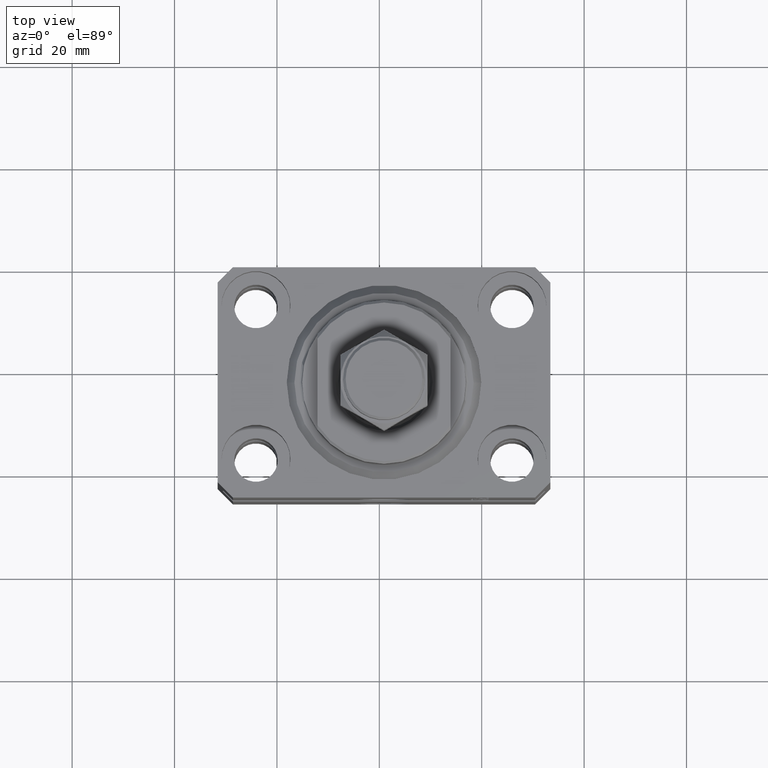
[diagram: clean part render]
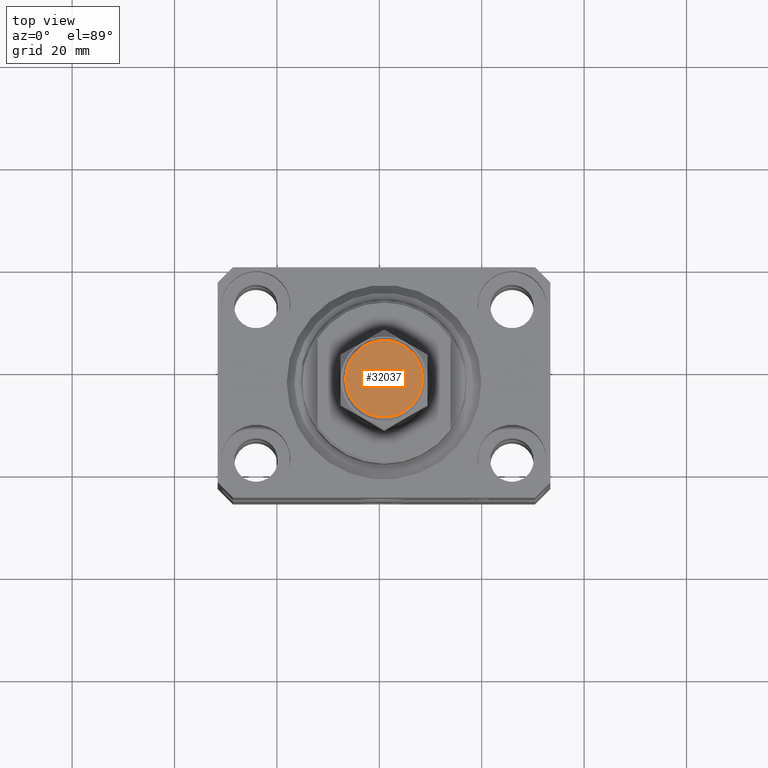
[diagram: same view with one face highlighted and labeled with its STEP entity id]
A machine part, top view. The second image highlights one B-rep face of the part: STEP entity #32037.
In plain terms, the highlighted planar face has unit normal (0, 0, 1).
Its self-contained STEP definition (entity closure, byte-faithful):
#325 = CARTESIAN_POINT ( 'NONE',  ( 0.000000000000000000, 0.000000000000000000, 28.00000000000000000 ) ) ;
#2161 = EDGE_CURVE ( 'NONE', #20769, #38728, #12132, .T. ) ;
#3106 = DIRECTION ( 'NONE',  ( 0.000000000000000000, 0.000000000000000000, 1.000000000000000000 ) ) ;
#5417 = ORIENTED_EDGE ( 'NONE', *, *, #31019, .T. ) ;
#6527 = AXIS2_PLACEMENT_3D ( 'NONE', #13938, #6704, #28371 ) ;
#6704 = DIRECTION ( 'NONE',  ( 0.000000000000000000, 0.000000000000000000, 1.000000000000000000 ) ) ;
#6933 = FACE_OUTER_BOUND ( 'NONE', #42338, .T. ) ;
#11048 = DIRECTION ( 'NONE',  ( 1.000000000000000000, 0.000000000000000000, 0.000000000000000000 ) ) ;
#11522 = DIRECTION ( 'NONE',  ( 1.000000000000000000, 0.000000000000000000, 0.000000000000000000 ) ) ;
#12132 = CIRCLE ( 'NONE', #38141, 7.500000000000000000 ) ;
#13938 = CARTESIAN_POINT ( 'NONE',  ( 0.000000000000000000, 0.000000000000000000, 28.00000000000000000 ) ) ;
#15035 = DIRECTION ( 'NONE',  ( 0.000000000000000000, 0.000000000000000000, 1.000000000000000000 ) ) ;
#19124 = CARTESIAN_POINT ( 'NONE',  ( -7.500000000000000000, 0.000000000000000000, 28.00000000000000000 ) ) ;
#20638 = CIRCLE ( 'NONE', #34789, 7.500000000000000000 ) ;
#20769 = VERTEX_POINT ( 'NONE', #31015 ) ;
#20928 = PLANE ( 'NONE',  #6527 ) ;
#25262 = CARTESIAN_POINT ( 'NONE',  ( 0.000000000000000000, 0.000000000000000000, 28.00000000000000000 ) ) ;
#28371 = DIRECTION ( 'NONE',  ( 1.000000000000000000, 0.000000000000000000, -0.000000000000000000 ) ) ;
#31015 = CARTESIAN_POINT ( 'NONE',  ( 7.500000000000000000, 9.491012693391985815E-16, 28.00000000000000000 ) ) ;
#31019 = EDGE_CURVE ( 'NONE', #38728, #20769, #20638, .T. ) ;
#32037 = ADVANCED_FACE ( 'NONE', ( #6933 ), #20928, .T. ) ;
#34789 = AXIS2_PLACEMENT_3D ( 'NONE', #325, #15035, #11522 ) ;
#38141 = AXIS2_PLACEMENT_3D ( 'NONE', #25262, #3106, #11048 ) ;
#38728 = VERTEX_POINT ( 'NONE', #19124 ) ;
#42338 = EDGE_LOOP ( 'NONE', ( #5417, #45701 ) ) ;
#45701 = ORIENTED_EDGE ( 'NONE', *, *, #2161, .T. ) ;